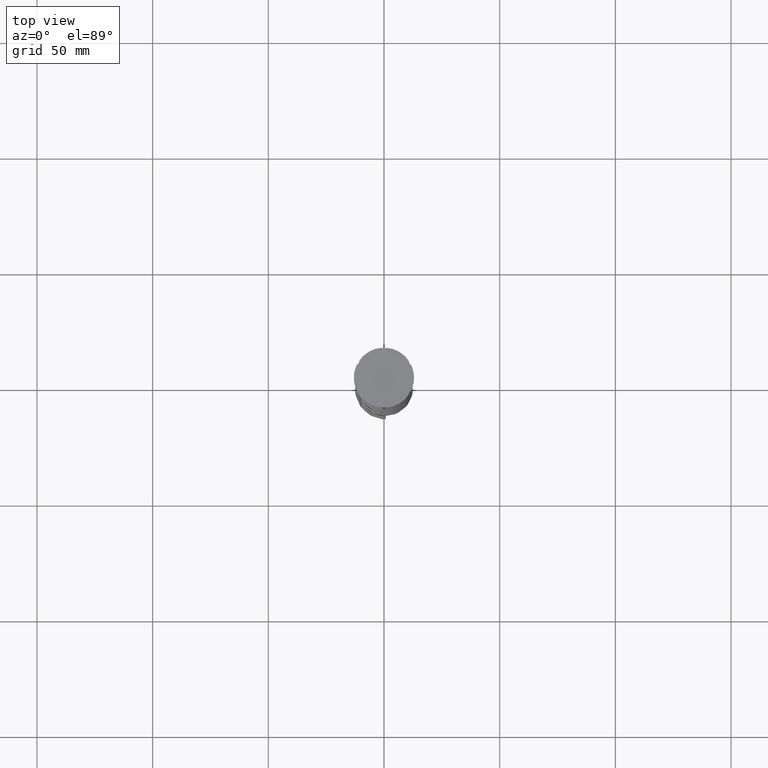
[diagram: clean part render]
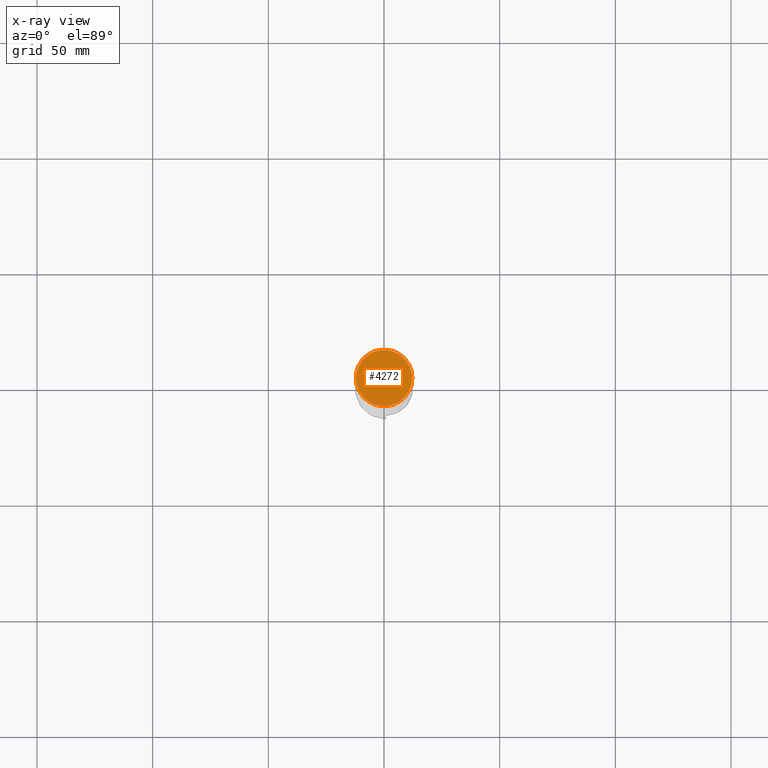
[diagram: x-ray — body ghosted, one internal face saturated and labeled with its STEP entity id]
A machine part, top view, then the same camera in x-ray: the body is ghosted and one INTERNAL B-rep face — a face not visible from any outside direction — is saturated and labeled: STEP entity #4272.
In plain terms, the highlighted planar face has unit normal (0, 0, -1).
Its self-contained STEP definition (entity closure, byte-faithful):
#246 = CARTESIAN_POINT ( 'NONE',  ( 12.20000000000000639, 1.512438796946981880E-15, -12.00000000000000000 ) ) ;
#356 = VERTEX_POINT ( 'NONE', #1318 ) ;
#562 = CIRCLE ( 'NONE', #3030, 12.20000000000000639 ) ;
#636 = CARTESIAN_POINT ( 'NONE',  ( 0.000000000000000000, 0.000000000000000000, -12.00000000000000000 ) ) ;
#700 = DIRECTION ( 'NONE',  ( -0.000000000000000000, -0.000000000000000000, 1.000000000000000000 ) ) ;
#710 = CIRCLE ( 'NONE', #4121, 12.20000000000000639 ) ;
#958 = ORIENTED_EDGE ( 'NONE', *, *, #2047, .T. ) ;
#1083 = CARTESIAN_POINT ( 'NONE',  ( 0.000000000000000000, 0.000000000000000000, -12.00000000000000000 ) ) ;
#1311 = DIRECTION ( 'NONE',  ( -1.000000000000000000, 0.000000000000000000, 0.000000000000000000 ) ) ;
#1318 = CARTESIAN_POINT ( 'NONE',  ( -12.20000000000000639, 0.000000000000000000, -12.00000000000000000 ) ) ;
#1692 = CARTESIAN_POINT ( 'NONE',  ( 0.000000000000000000, 0.000000000000000000, -12.00000000000000000 ) ) ;
#1738 = DIRECTION ( 'NONE',  ( -1.000000000000000000, 0.000000000000000000, 0.000000000000000000 ) ) ;
#1837 = EDGE_CURVE ( 'NONE', #356, #2420, #562, .T. ) ;
#2047 = EDGE_CURVE ( 'NONE', #2420, #356, #710, .T. ) ;
#2420 = VERTEX_POINT ( 'NONE', #246 ) ;
#2439 = AXIS2_PLACEMENT_3D ( 'NONE', #636, #3707, #2694 ) ;
#2694 = DIRECTION ( 'NONE',  ( -1.000000000000000000, 0.000000000000000000, -0.000000000000000000 ) ) ;
#3030 = AXIS2_PLACEMENT_3D ( 'NONE', #1692, #3370, #1311 ) ;
#3267 = ORIENTED_EDGE ( 'NONE', *, *, #1837, .T. ) ;
#3370 = DIRECTION ( 'NONE',  ( -0.000000000000000000, -0.000000000000000000, 1.000000000000000000 ) ) ;
#3707 = DIRECTION ( 'NONE',  ( 0.000000000000000000, 0.000000000000000000, -1.000000000000000000 ) ) ;
#4041 = PLANE ( 'NONE',  #2439 ) ;
#4121 = AXIS2_PLACEMENT_3D ( 'NONE', #1083, #700, #1738 ) ;
#4200 = EDGE_LOOP ( 'NONE', ( #3267, #958 ) ) ;
#4272 = ADVANCED_FACE ( 'NONE', ( #4427 ), #4041, .F. ) ;
#4427 = FACE_OUTER_BOUND ( 'NONE', #4200, .T. ) ;